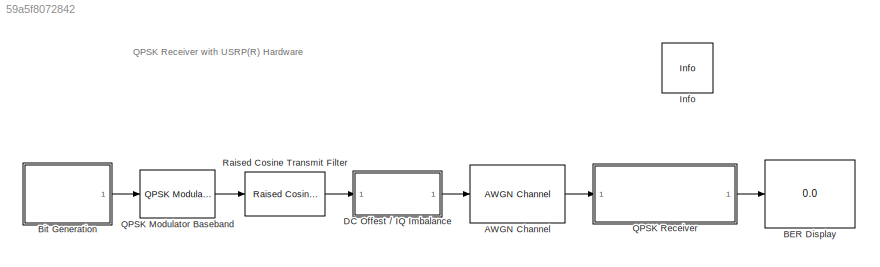
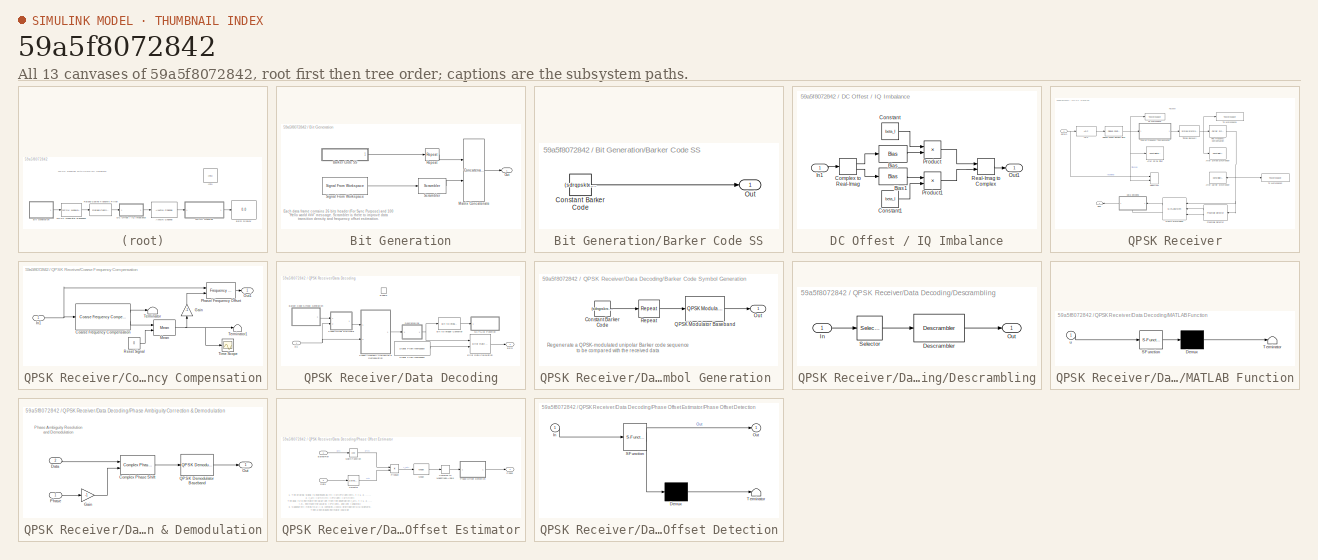
[diagram: thumbnail index - all 13 canvases of the model, root first then tree order]
MODEL slx_59a5f8072842
KIND model
CONFIG AbsTol = auto
CONFIG EnableMultiTasking = off
CONFIG FixedStep = auto
CONFIG MaxStep = auto
CONFIG MinStep = auto
CONFIG PostLoadFcn = sdruExampleSetAvailableRadio;\n
CONFIG PreLoadFcn = platform = sdruExampleFindRadio;\nsdrqpskrx = sdruqpskreceiver_init(platform, false);\nclear platform\nplatform = sdruExampleFindRadio;\nsdrqpsktx = sdruqpsktransmitter_init(platform, false);\nclear platform
CONFIG RelTol = 1e-3
CONFIG SampleTimeConstraint = Unconstrained
CONFIG SolverName = FixedStepDiscrete
CONFIG StartTime = 0.0
CONFIG StopTime = 10
BLOCK [Reference] AWGN Channel  REF=commchan3/AWGN
Channel
  Ports = [1, 1]
  SourceBlock = commchan3/AWGN\nChannel
  SourceProductBaseCode = CM
  SourceType = AWGN Channel
  UserDataPersistent = on
BLOCK [Display] BER Display
  Decimation = 1
  Ports = [1]
BLOCK [SubSystem] Bit Generation
  Ports = [0, 1]
  RequestExecContextInheritance = off
BLOCK [SubSystem] Bit Generation/Barker Code SS
  Ports = [0, 1]
  RequestExecContextInheritance = off
BLOCK [Constant] Bit Generation/Barker Code SS/Constant Barker Code
  OutDataTypeStr = double
  Value = (sdrqpsktx.BarkerCode)' > 0; % Bipolar to Unipolar
  VectorParams1D = off
BLOCK [Outport] Bit Generation/Barker Code SS/Out
  VectorParamsAs1DForOutWhenUnconnected = off
BLOCK [Concatenate] Bit Generation/Matrix Concatenate
  Mode = Multidimensional array
  Ports = [2, 1]
BLOCK [Outport] Bit Generation/Out
  VectorParamsAs1DForOutWhenUnconnected = off
BLOCK [Reference] Bit Generation/Repeat  REF=dspsigops/Repeat
  Ports = [1, 1]
  SourceBlock = dspsigops/Repeat
  SourceProductName = DSP System Toolbox
  SourceType = Repeat
  UserDataPersistent = on
BLOCK [Reference] Bit Generation/Scrambler  REF=commsequence2/Scrambler
  Ports = [1, 1]
  SourceBlock = commsequence2/Scrambler
  SourceProductName = Communications Toolbox
  SourceType = Scrambler
BLOCK [Reference] Bit Generation/Signal From Workspace  REF=dspsrcs4/Signal From
Workspace
  Ports = [0, 1]
  SourceBlock = dspsrcs4/Signal From\nWorkspace
  SourceProductName = DSP System Toolbox
  SourceType = Signal From Workspace
BLOCK [SubSystem] DC Offest // IQ Imbalance
  Ports = [1, 1]
  RequestExecContextInheritance = off
BLOCK [Bias] DC Offest // IQ Imbalance/Bias
  Bias = I_offset
  SaturateOnIntegerOverflow = off
BLOCK [Bias] DC Offest // IQ Imbalance/Bias1
  Bias = Q_offset
  SaturateOnIntegerOverflow = off
BLOCK [ComplexToRealImag] DC Offest // IQ Imbalance/Complex to Real-Imag
  Ports = [1, 2]
BLOCK [Constant] DC Offest // IQ Imbalance/Constant
  Value = beta_I
BLOCK [Constant] DC Offest // IQ Imbalance/Constant1
  Value = beta_I
BLOCK [Inport] DC Offest // IQ Imbalance/In1
BLOCK [Outport] DC Offest // IQ Imbalance/Out1
BLOCK [Product] DC Offest // IQ Imbalance/Product
  Ports = [2, 1]
BLOCK [Product] DC Offest // IQ Imbalance/Product1
  Ports = [2, 1]
BLOCK [RealImagToComplex] DC Offest // IQ Imbalance/Real-Imag to Complex
  Ports = [2, 1]
BLOCK [Reference] Info  REF=sdrublksprivate/Info
  Ports = []
  SourceBlock = sdrublksprivate/Info
  SourceProductBaseCode = USRP
  SourceType = Info
BLOCK [Reference] QPSK Modulator Baseband  REF=commdigbbndpm3/QPSK
Modulator
Baseband
  Ports = [1, 1]
  SourceBlock = commdigbbndpm3/QPSK\nModulator\nBaseband
  SourceProductName = Communications Toolbox
  SourceType = QPSK Modulator Baseband
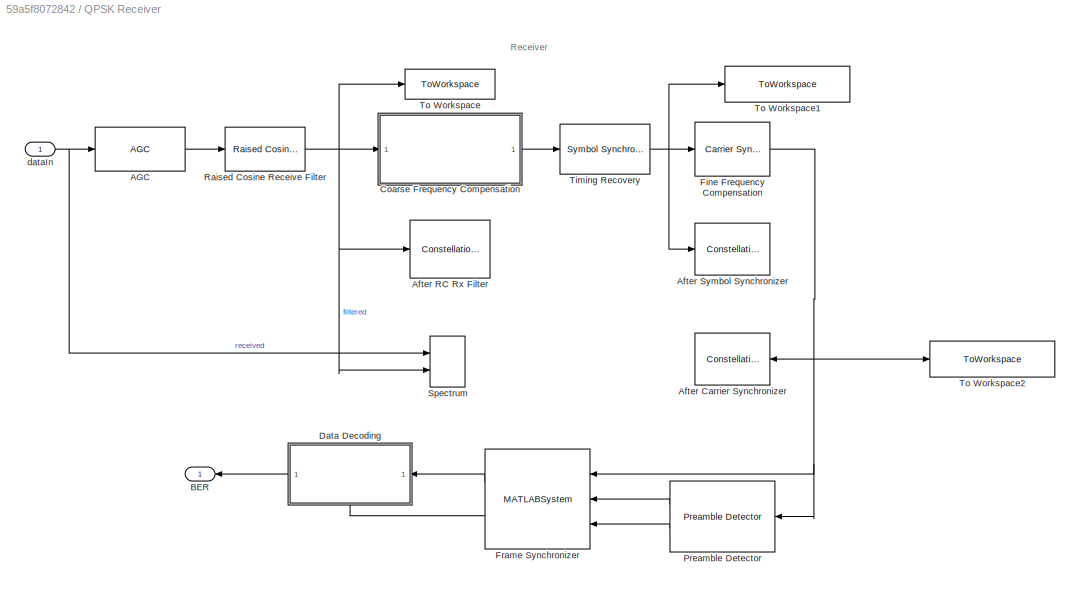
BLOCK [SubSystem] QPSK Receiver
  NameLocation = top
  Ports = [1, 1]
  RequestExecContextInheritance = off
BLOCK [Reference] QPSK Receiver/AGC  REF=commrfcorlib/AGC
  Ports = [1, 1]
  SourceBlock = commrfcorlib/AGC
  SourceProductName = Communications Toolbox
  SourceType = AGC
BLOCK [ConstellationDiagram] QPSK Receiver/After Carrier Synchronizer
  Ports = [1]
  ScopeSpecificationString = comm.scopes.ConstellationDiagramBlockCfg('CurrentConfiguration', extmgr.ConfigurationSet(extmgr.Configuration('Core','General UI',true),extmgr.Configuration('Core','Source UI',true),extmgr.Configuration('Sources','WiredSimulink',true),extmgr.Configuration('Sources','File',false),extmgr.Configuration('Sources','Workspace',false),extmgr.Configuration('Sources','Streaming',false),extmgr.Configuration...<+3166ch>
  Tag = ScatterPlot
BLOCK [ConstellationDiagram] QPSK Receiver/After RC Rx Filter
  Ports = [1]
  ScopeSpecificationString = comm.scopes.ConstellationDiagramBlockCfg('CurrentConfiguration', extmgr.ConfigurationSet(extmgr.Configuration('Core','General UI',true),extmgr.Configuration('Core','Source UI',true),extmgr.Configuration('Sources','WiredSimulink',true),extmgr.Configuration('Sources','Workspace',false),extmgr.Configuration('Sources','Streaming',false),extmgr.Configuration('Sources','Simulink',false),extmgr.Configura...<+3027ch>
  Tag = ScatterPlot
BLOCK [ConstellationDiagram] QPSK Receiver/After Symbol Synchronizer
  Ports = [1]
  ScopeSpecificationString = comm.scopes.ConstellationDiagramBlockCfg('CurrentConfiguration', extmgr.ConfigurationSet(extmgr.Configuration('Core','General UI',true),extmgr.Configuration('Core','Source UI',true),extmgr.Configuration('Sources','WiredSimulink',true),extmgr.Configuration('Sources','File',false),extmgr.Configuration('Sources','Workspace',false),extmgr.Configuration('Sources','Streaming',false),extmgr.Configuration...<+3032ch>
  Tag = ScatterPlot
BLOCK [Outport] QPSK Receiver/BER
  VectorParamsAs1DForOutWhenUnconnected = off
BLOCK [SubSystem] QPSK Receiver/Coarse Frequency Compensation
  Ports = [1, 1]
  RequestExecContextInheritance = off
BLOCK [Reference] QPSK Receiver/Coarse Frequency Compensation/Coarse Frequency Compensation  REF=commrfcorlib/Coarse Frequency
Compensator
  Ports = [1, 2]
  SourceBlock = commrfcorlib/Coarse Frequency\nCompensator
  SourceProductName = Communications Toolbox
  SourceType = Coarse Frequency Compensator
BLOCK [Gain] QPSK Receiver/Coarse Frequency Compensation/Gain
  Gain = -1
  NameLocation = right
BLOCK [Inport] QPSK Receiver/Coarse Frequency Compensation/In1
BLOCK [Reference] QPSK Receiver/Coarse Frequency Compensation/Mean  REF=dspstat3/Mean
  Ports = [2, 1]
  SourceBlock = dspstat3/Mean
  SourceProductName = DSP System Toolbox
  SourceType = Mean
  UserDataPersistent = on
BLOCK [Outport] QPSK Receiver/Coarse Frequency Compensation/Out1
  VectorParamsAs1DForOutWhenUnconnected = off
BLOCK [Reference] QPSK Receiver/Coarse Frequency Compensation/Phase// Frequency Offset  REF=commrflib2/Phase//
Frequency
Offset
  Ports = [2, 1]
  SourceBlock = commrflib2/Phase//\nFrequency\nOffset
  SourceProductName = Communications Toolbox
  SourceType = Phase/Frequency Offset
BLOCK [Constant] QPSK Receiver/Coarse Frequency Compensation/Reset Signal
  Value = 0
BLOCK [Terminator] QPSK Receiver/Coarse Frequency Compensation/Terminator
BLOCK [Terminator] QPSK Receiver/Coarse Frequency Compensation/Terminator1
BLOCK [Scope] QPSK Receiver/Coarse Frequency Compensation/Time Scope
  Commented = on
  DefaultConfigurationName = spbscopes.TimeScopeBlockCfg
  Floating = off
  NumInputPorts = 1
  Ports = [1]
  ScopeSpecificationString = spbscopes.TimeScopeBlockCfg('CurrentConfiguration', extmgr.ConfigurationSet(extmgr.Configuration('Core','General UI',true),extmgr.Configuration('Core','Source UI',true),extmgr.Configuration('Sources','WiredSimulink',true,'DataLoggingVariableName','ScopeData1'),extmgr.Configuration('Visuals','Time Domain',true),extmgr.Configuration('Tools','Plot Navigation',true),extmgr.Configuration('Tools','Measu...<+34ch>
  UserDataPersistent = on
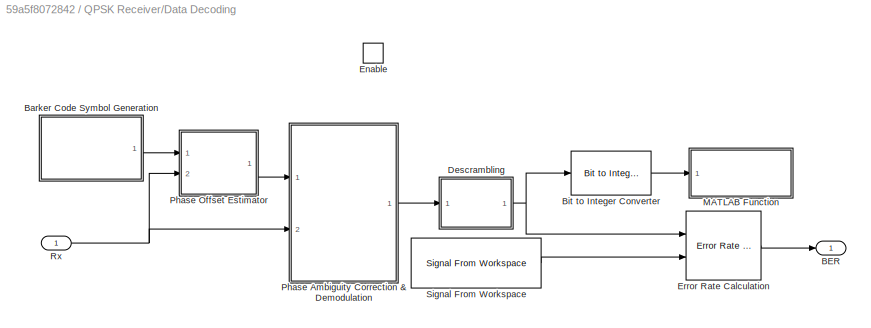
BLOCK [SubSystem] QPSK Receiver/Data Decoding
  NameLocation = top
  Ports = [1, 1, 1]
  RequestExecContextInheritance = off
BLOCK [Outport] QPSK Receiver/Data Decoding/BER
  VectorParamsAs1DForOutWhenUnconnected = off
BLOCK [SubSystem] QPSK Receiver/Data Decoding/Barker Code Symbol Generation 
  Ports = [0, 1]
  RequestExecContextInheritance = off
BLOCK [Constant] QPSK Receiver/Data Decoding/Barker Code Symbol Generation /Constant Barker Code
  OutDataTypeStr = double
  Value = (sdrqpskrx.BarkerCode)' > 0
  VectorParams1D = off
BLOCK [Outport] QPSK Receiver/Data Decoding/Barker Code Symbol Generation /Out
  VectorParamsAs1DForOutWhenUnconnected = off
BLOCK [Reference] QPSK Receiver/Data Decoding/Barker Code Symbol Generation /QPSK Modulator Baseband  REF=commdigbbndpm3/QPSK
Modulator
Baseband
  Ports = [1, 1]
  SourceBlock = commdigbbndpm3/QPSK\nModulator\nBaseband
  SourceProductName = Communications Toolbox
  SourceType = QPSK Modulator Baseband
BLOCK [Reference] QPSK Receiver/Data Decoding/Barker Code Symbol Generation /Repeat  REF=dspsigops/Repeat
  Ports = [1, 1]
  SourceBlock = dspsigops/Repeat
  SourceProductName = DSP System Toolbox
  SourceType = Repeat
  UserDataPersistent = on
BLOCK [Reference] QPSK Receiver/Data Decoding/Bit to Integer Converter  REF=commutil2/Bit to Integer
Converter
  Ports = [1, 1]
  SourceBlock = commutil2/Bit to Integer\nConverter
  SourceProductName = Communications Toolbox
  SourceType = Bit to Integer Converter
BLOCK [SubSystem] QPSK Receiver/Data Decoding/Descrambling
  Ports = [1, 1]
  RequestExecContextInheritance = off
BLOCK [Reference] QPSK Receiver/Data Decoding/Descrambling/Descrambler  REF=commsequence2/Descrambler
  Ports = [1, 1]
  SourceBlock = commsequence2/Descrambler
  SourceProductName = Communications Toolbox
  SourceType = Descrambler
BLOCK [Inport] QPSK Receiver/Data Decoding/Descrambling/In
BLOCK [Outport] QPSK Receiver/Data Decoding/Descrambling/Out
  VectorParamsAs1DForOutWhenUnconnected = off
BLOCK [Selector] QPSK Receiver/Data Decoding/Descrambling/Selector
  IndexOptions = Index vector (dialog)
  Indices = [sdrqpskrx.HeaderLength+(1 : sdrqpskrx.PayloadLength)]
  OutputSizes = 1
  Ports = [1, 1]
BLOCK [EnablePort] QPSK Receiver/Data Decoding/Enable
  Ports = []
BLOCK [Reference] QPSK Receiver/Data Decoding/Error Rate Calculation  REF=commsink2/Error Rate
Calculation
  Ports = [2, 1]
  SourceBlock = commsink2/Error Rate\nCalculation
  SourceProductName = Communications Toolbox
  SourceType = Error Rate Calculation
BLOCK [SubSystem] QPSK Receiver/Data Decoding/MATLAB Function
  ErrorFcn = Stateflow.Translate.translate
  PermitHierarchicalResolution = ExplicitOnly
  Ports = [1]
  RequestExecContextInheritance = off
  SFBlockType = MATLAB Function
  TreatAsAtomicUnit = on
BLOCK [Demux] QPSK Receiver/Data Decoding/MATLAB Function/ Demux 
  Outputs = 1
  Ports = [1, 1]
BLOCK [S-Function] QPSK Receiver/Data Decoding/MATLAB Function/ SFunction 
  EnableBusSupport = on
  FunctionName = sf_sfun
  PortCounts = [1 1]
  Ports = [1, 1]
  SFcnIsStateOwnerBlock = off
  SFunctionDeploymentMode = off
  Tag = Stateflow S-Function 1
BLOCK [Terminator] QPSK Receiver/Data Decoding/MATLAB Function/ Terminator 
BLOCK [Inport] QPSK Receiver/Data Decoding/MATLAB Function/u
BLOCK [SubSystem] QPSK Receiver/Data Decoding/Phase Ambiguity Correction & Demodulation
  Ports = [2, 1]
  RequestExecContextInheritance = off
BLOCK [Reference] QPSK Receiver/Data Decoding/Phase Ambiguity Correction & Demodulation/Complex Phase Shift  REF=commutil2/Complex Phase
Shift
  Ports = [2, 1]
  SourceBlock = commutil2/Complex Phase\nShift
  SourceProductName = Communications Toolbox
  SourceType = Complex Phase Shift
BLOCK [Inport] QPSK Receiver/Data Decoding/Phase Ambiguity Correction & Demodulation/Data
  Port = 2
BLOCK [Gain] QPSK Receiver/Data Decoding/Phase Ambiguity Correction & Demodulation/Gain
  Gain = -1
  OutDataTypeStr = Inherit: Same as input
BLOCK [Outport] QPSK Receiver/Data Decoding/Phase Ambiguity Correction & Demodulation/Out
  VectorParamsAs1DForOutWhenUnconnected = off
BLOCK [Inport] QPSK Receiver/Data Decoding/Phase Ambiguity Correction & Demodulation/Phase
BLOCK [Reference] QPSK Receiver/Data Decoding/Phase Ambiguity Correction & Demodulation/QPSK Demodulator Baseband  REF=commdigbbndpm3/QPSK
Demodulator
Baseband
  Ports = [1, 1]
  SourceBlock = commdigbbndpm3/QPSK\nDemodulator\nBaseband
  SourceProductName = Communications Toolbox
  SourceType = QPSK Demodulator Baseband
BLOCK [SubSystem] QPSK Receiver/Data Decoding/Phase Offset Estimator
  Ports = [2, 1]
  RequestExecContextInheritance = off
BLOCK [Inport] QPSK Receiver/Data Decoding/Phase Offset Estimator/BarkerRef
BLOCK [ComplexToMagnitudeAngle] QPSK Receiver/Data Decoding/Phase Offset Estimator/Complex to Magnitude-Angle
  Output = Angle
  Ports = [1, 1]
BLOCK [Inport] QPSK Receiver/Data Decoding/Phase Offset Estimator/Data
  Port = 2
BLOCK [Math] QPSK Receiver/Data Decoding/Phase Offset Estimator/Math Function
  Operator = conj
  Ports = [1, 1]
  SignedPower = on
BLOCK [Reference] QPSK Receiver/Data Decoding/Phase Offset Estimator/Mean  REF=dspstat3/Mean
  Ports = [1, 1]
  SourceBlock = dspstat3/Mean
  SourceProductName = DSP System Toolbox
  SourceType = Mean
  UserDataPersistent = on
BLOCK [Outport] QPSK Receiver/Data Decoding/Phase Offset Estimator/Phase
  VectorParamsAs1DForOutWhenUnconnected = off
BLOCK [SubSystem] QPSK Receiver/Data Decoding/Phase Offset Estimator/Phase Offset Detection
  ErrorFcn = Stateflow.Translate.translate
  PermitHierarchicalResolution = ExplicitOnly
  Ports = [1, 1]
  RequestExecContextInheritance = off
  SFBlockType = MATLAB Function
  TreatAsAtomicUnit = on
BLOCK [Demux] QPSK Receiver/Data Decoding/Phase Offset Estimator/Phase Offset Detection/ Demux 
  Outputs = 1
  Ports = [1, 1]
BLOCK [S-Function] QPSK Receiver/Data Decoding/Phase Offset Estimator/Phase Offset Detection/ SFunction 
  EnableBusSupport = on
  FunctionName = sf_sfun
  PortCounts = [1 2]
  Ports = [1, 2]
  SFcnIsStateOwnerBlock = off
  SFunctionDeploymentMode = off
  Tag = Stateflow S-Function 2
BLOCK [Terminator] QPSK Receiver/Data Decoding/Phase Offset Estimator/Phase Offset Detection/ Terminator 
BLOCK [Inport] QPSK Receiver/Data Decoding/Phase Offset Estimator/Phase Offset Detection/In
BLOCK [Outport] QPSK Receiver/Data Decoding/Phase Offset Estimator/Phase Offset Detection/Out
  VectorParamsAs1DForOutWhenUnconnected = off
BLOCK [Product] QPSK Receiver/Data Decoding/Phase Offset Estimator/Product
  Ports = [2, 1]
  RndMeth = Zero
BLOCK [Selector] QPSK Receiver/Data Decoding/Phase Offset Estimator/Selector
  IndexOptions = Index vector (dialog)
  Indices = [1:sdrqpskrx.BarkerLength]
  OutputSizes = 1
  Ports = [1, 1]
BLOCK [Inport] QPSK Receiver/Data Decoding/Rx
BLOCK [Reference] QPSK Receiver/Data Decoding/Signal From Workspace  REF=dspsrcs4/Signal From
Workspace
  Ports = [0, 1]
  SourceBlock = dspsrcs4/Signal From\nWorkspace
  SourceProductName = DSP System Toolbox
  SourceType = Signal From Workspace
BLOCK [Reference] QPSK Receiver/Fine Frequency Compensation  REF=commsync2/Carrier Synchronizer
  Ports = [1, 1]
  SourceBlock = commsync2/Carrier Synchronizer
  SourceProductName = Communications Toolbox
  SourceType = Carrier Synchronizer
BLOCK [MATLABSystem] QPSK Receiver/Frame Synchronizer
  Input = Symbol
  MaskDisplay = disp(['Frame' char(10) 'Synchronizer']);\nport_label('input',1,'u');\nport_label('input',2,'idx');\nport_label('input',3,'dtMt');\nport_label('output',1,'Frame');\nport_label('output',2,'Valid');
  MaskType = comm.internal.examples.FrameSynchronizer
  OutputFrameLength = sdrqpskrx.FrameSize
  Ports = [3, 2]
  PreambleLength = sdrqpskrx.BarkerLength
  SimulateUsing = Code generation
  System = comm.internal.examples.FrameSynchronizer
BLOCK [Reference] QPSK Receiver/Preamble Detector  REF=commsync2/Preamble Detector
  Ports = [1, 2]
  SourceBlock = commsync2/Preamble Detector
  SourceProductName = Communications Toolbox
  SourceType = Preamble Detector
BLOCK [Reference] QPSK Receiver/Raised Cosine Receive Filter  REF=commfilt2/Raised Cosine
Receive Filter
  Ports = [1, 1]
  SourceBlock = commfilt2/Raised Cosine\nReceive Filter
  SourceProductName = Communications Toolbox
  SourceType = Raised Cosine Receive Filter
  UserDataPersistent = on
BLOCK [SpectrumAnalyzer] QPSK Receiver/Spectrum
  Commented = on
  NumInputPorts = 2
  Ports = [2]
  ScopeSpecificationString = spbscopes.SpectrumAnalyzerBlockCfg('CurrentConfiguration', extmgr.ConfigurationSet(extmgr.Configuration('Core','General UI',true,'DisplayFullSourceName',true,'ShowPlaybackToolbar',false,'FigureColor',[0.701960784313725 0.701960784313725 0.701960784313725]),extmgr.Configuration('Core','Source UI',true),extmgr.Configuration('Sources','WiredSimulink',true),extmgr.Configuration('Sources','Streaming',f...<+3722ch>
BLOCK [Reference] QPSK Receiver/Timing Recovery  REF=commsync2/Symbol Synchronizer
  Ports = [1, 1]
  SourceBlock = commsync2/Symbol Synchronizer
  SourceProductName = Communications Toolbox
  SourceType = Symbol Synchronizer
BLOCK [ToWorkspace] QPSK Receiver/To Workspace
  FixptAsFi = on
  MaxDataPoints = inf
  Ports = [1]
  SampleTime = -1
  Save2DSignal = 2-D array (concatenate along first dimension)
  SaveFormat = Structure
  VariableName = Data_AfterRCRxFilter
BLOCK [ToWorkspace] QPSK Receiver/To Workspace1
  Commented = on
  FixptAsFi = on
  MaxDataPoints = inf
  Ports = [1]
  SampleTime = -1
  Save2DSignal = 2-D array (concatenate along first dimension)
  SaveFormat = Structure
  VariableName = Data_AfterSymbolSynchronizer
BLOCK [ToWorkspace] QPSK Receiver/To Workspace2
  Commented = on
  FixptAsFi = on
  MaxDataPoints = inf
  Ports = [1]
  SampleTime = -1
  Save2DSignal = 2-D array (concatenate along first dimension)
  SaveFormat = Structure
  VariableName = Data_AfterCarrierSynchronizer
BLOCK [Inport] QPSK Receiver/dataIn
BLOCK [Reference] Raised Cosine Transmit Filter  REF=commfilt2/Raised Cosine
Transmit Filter
  Ports = [1, 1]
  SourceBlock = commfilt2/Raised Cosine\nTransmit Filter
  SourceProductName = Communications Toolbox
  SourceType = Raised Cosine Transmit Filter
  UserDataPersistent = on
ANNOTATION (root): QPSK Receiver with USRP(R) Hardware
ANNOTATION Bit Generation: Each data frame contains 26 bits header (For Sync Purpose) and 100 "Hello world ###" message. Scrambler is there to improve data transition density and frequency offset estimation.
ANNOTATION QPSK Receiver: Receiver
ANNOTATION QPSK Receiver/Data Decoding/Barker Code Symbol Generation : Regenerate a QPSK-modulated unipolar Barker code sequence to be compared with the received data
ANNOTATION QPSK Receiver/Data Decoding/Phase Ambiguity Correction & Demodulation: Phase Ambiguity Resolution and Demodulation
ANNOTATION QPSK Receiver/Data Decoding/Phase Offset Estimator: 1. The original signal is expressed as y(t) = x(t)e^{j\phi}+n(t), t = 1, 2, ..., N 2. y_1(t) = x{*}(t)y(t) = e^{j\phi} + x{*}(t)n(t) The goal is to estimate the value \phi from the observation y_1(t), t = 1, 2, ...N i.e., estimate the value B = e^{j\phi}, and \phi = angle(B) 3. Suppose n(t) yields to a i.i.d. complex AWGN distribution N(0,\sigma^2). Then a non-biased estimator could be B_{est} = 1...<+91ch>
LINE AWGN Channel:1 -> QPSK Receiver:1
LINE Bit Generation/Barker Code SS/Constant Barker Code:1 -> Bit Generation/Barker Code SS/Out:1
LINE Bit Generation/Barker Code SS:1 -> Bit Generation/Repeat:1
LINE Bit Generation/Matrix Concatenate:1 -> Bit Generation/Out:1
LINE Bit Generation/Repeat:1 -> Bit Generation/Matrix Concatenate:1
LINE Bit Generation/Scrambler:1 -> Bit Generation/Matrix Concatenate:2
LINE Bit Generation/Signal From Workspace:1 -> Bit Generation/Scrambler:1
LINE Bit Generation:1 -> QPSK Modulator Baseband:1
LINE DC Offest // IQ Imbalance/Bias1:1 -> DC Offest // IQ Imbalance/Product1:1
LINE DC Offest // IQ Imbalance/Bias:1 -> DC Offest // IQ Imbalance/Product:2
LINE DC Offest // IQ Imbalance/Complex to Real-Imag:1 -> DC Offest // IQ Imbalance/Bias:1
LINE DC Offest // IQ Imbalance/Complex to Real-Imag:2 -> DC Offest // IQ Imbalance/Bias1:1
LINE DC Offest // IQ Imbalance/Constant1:1 -> DC Offest // IQ Imbalance/Product1:2
LINE DC Offest // IQ Imbalance/Constant:1 -> DC Offest // IQ Imbalance/Product:1
LINE DC Offest // IQ Imbalance/In1:1 -> DC Offest // IQ Imbalance/Complex to Real-Imag:1
LINE DC Offest // IQ Imbalance/Product1:1 -> DC Offest // IQ Imbalance/Real-Imag to Complex:2
LINE DC Offest // IQ Imbalance/Product:1 -> DC Offest // IQ Imbalance/Real-Imag to Complex:1
LINE DC Offest // IQ Imbalance/Real-Imag to Complex:1 -> DC Offest // IQ Imbalance/Out1:1
LINE DC Offest // IQ Imbalance:1 -> AWGN Channel:1
LINE QPSK Modulator Baseband:1 -> Raised Cosine Transmit Filter:1
LINE QPSK Receiver/AGC:1 -> QPSK Receiver/Raised Cosine Receive Filter:1
LINE QPSK Receiver/Coarse Frequency Compensation/Coarse Frequency Compensation:1 -> QPSK Receiver/Coarse Frequency Compensation/Terminator:1
LINE QPSK Receiver/Coarse Frequency Compensation/Coarse Frequency Compensation:2 -> QPSK Receiver/Coarse Frequency Compensation/Mean:1
LINE QPSK Receiver/Coarse Frequency Compensation/Gain:1 -> QPSK Receiver/Coarse Frequency Compensation/Phase// Frequency Offset:2
NET QPSK Receiver/Coarse Frequency Compensation/In1:1 -> QPSK Receiver/Coarse Frequency Compensation/Coarse Frequency Compensation:1, QPSK Receiver/Coarse Frequency Compensation/Phase// Frequency Offset:1
NET QPSK Receiver/Coarse Frequency Compensation/Mean:1 -> QPSK Receiver/Coarse Frequency Compensation/Gain:1, QPSK Receiver/Coarse Frequency Compensation/Terminator1:1, QPSK Receiver/Coarse Frequency Compensation/Time Scope:1
LINE QPSK Receiver/Coarse Frequency Compensation/Phase// Frequency Offset:1 -> QPSK Receiver/Coarse Frequency Compensation/Out1:1
LINE QPSK Receiver/Coarse Frequency Compensation/Reset Signal:1 -> QPSK Receiver/Coarse Frequency Compensation/Mean:2
LINE QPSK Receiver/Coarse Frequency Compensation:1 -> QPSK Receiver/Timing Recovery:1
LINE QPSK Receiver/Data Decoding/Barker Code Symbol Generation /Constant Barker Code:1 -> QPSK Receiver/Data Decoding/Barker Code Symbol Generation /Repeat:1
LINE QPSK Receiver/Data Decoding/Barker Code Symbol Generation /QPSK Modulator Baseband:1 -> QPSK Receiver/Data Decoding/Barker Code Symbol Generation /Out:1
LINE QPSK Receiver/Data Decoding/Barker Code Symbol Generation /Repeat:1 -> QPSK Receiver/Data Decoding/Barker Code Symbol Generation /QPSK Modulator Baseband:1
LINE QPSK Receiver/Data Decoding/Barker Code Symbol Generation :1 -> QPSK Receiver/Data Decoding/Phase Offset Estimator:1
LINE QPSK Receiver/Data Decoding/Bit to Integer Converter:1 -> QPSK Receiver/Data Decoding/MATLAB Function:1
LINE QPSK Receiver/Data Decoding/Descrambling/Descrambler:1 -> QPSK Receiver/Data Decoding/Descrambling/Out:1
LINE QPSK Receiver/Data Decoding/Descrambling/In:1 -> QPSK Receiver/Data Decoding/Descrambling/Selector:1
LINE QPSK Receiver/Data Decoding/Descrambling/Selector:1 -> QPSK Receiver/Data Decoding/Descrambling/Descrambler:1
NET QPSK Receiver/Data Decoding/Descrambling:1 -> QPSK Receiver/Data Decoding/Bit to Integer Converter:1, QPSK Receiver/Data Decoding/Error Rate Calculation:1
LINE QPSK Receiver/Data Decoding/Error Rate Calculation:1 -> QPSK Receiver/Data Decoding/BER:1
LINE QPSK Receiver/Data Decoding/Phase Ambiguity Correction & Demodulation/Complex Phase Shift:1 -> QPSK Receiver/Data Decoding/Phase Ambiguity Correction & Demodulation/QPSK Demodulator Baseband:1
LINE QPSK Receiver/Data Decoding/Phase Ambiguity Correction & Demodulation/Data:1 -> QPSK Receiver/Data Decoding/Phase Ambiguity Correction & Demodulation/Complex Phase Shift:1
LINE QPSK Receiver/Data Decoding/Phase Ambiguity Correction & Demodulation/Gain:1 -> QPSK Receiver/Data Decoding/Phase Ambiguity Correction & Demodulation/Complex Phase Shift:2
LINE QPSK Receiver/Data Decoding/Phase Ambiguity Correction & Demodulation/Phase:1 -> QPSK Receiver/Data Decoding/Phase Ambiguity Correction & Demodulation/Gain:1
LINE QPSK Receiver/Data Decoding/Phase Ambiguity Correction & Demodulation/QPSK Demodulator Baseband:1 -> QPSK Receiver/Data Decoding/Phase Ambiguity Correction & Demodulation/Out:1
LINE QPSK Receiver/Data Decoding/Phase Ambiguity Correction & Demodulation:1 -> QPSK Receiver/Data Decoding/Descrambling:1
LINE QPSK Receiver/Data Decoding/Phase Offset Estimator/BarkerRef:1 -> QPSK Receiver/Data Decoding/Phase Offset Estimator/Math Function:1
LINE QPSK Receiver/Data Decoding/Phase Offset Estimator/Complex to Magnitude-Angle:1 -> QPSK Receiver/Data Decoding/Phase Offset Estimator/Phase Offset Detection:1
LINE QPSK Receiver/Data Decoding/Phase Offset Estimator/Data:1 -> QPSK Receiver/Data Decoding/Phase Offset Estimator/Selector:1
LINE QPSK Receiver/Data Decoding/Phase Offset Estimator/Math Function:1 -> QPSK Receiver/Data Decoding/Phase Offset Estimator/Product:1
LINE QPSK Receiver/Data Decoding/Phase Offset Estimator/Mean:1 -> QPSK Receiver/Data Decoding/Phase Offset Estimator/Complex to Magnitude-Angle:1
LINE QPSK Receiver/Data Decoding/Phase Offset Estimator/Phase Offset Detection:1 -> QPSK Receiver/Data Decoding/Phase Offset Estimator/Phase:1
LINE QPSK Receiver/Data Decoding/Phase Offset Estimator/Product:1 -> QPSK Receiver/Data Decoding/Phase Offset Estimator/Mean:1
LINE QPSK Receiver/Data Decoding/Phase Offset Estimator/Selector:1 -> QPSK Receiver/Data Decoding/Phase Offset Estimator/Product:2
LINE QPSK Receiver/Data Decoding/Phase Offset Estimator:1 -> QPSK Receiver/Data Decoding/Phase Ambiguity Correction & Demodulation:1
NET QPSK Receiver/Data Decoding/Rx:1 -> QPSK Receiver/Data Decoding/Phase Ambiguity Correction & Demodulation:2, QPSK Receiver/Data Decoding/Phase Offset Estimator:2
LINE QPSK Receiver/Data Decoding/Signal From Workspace:1 -> QPSK Receiver/Data Decoding/Error Rate Calculation:2
LINE QPSK Receiver/Data Decoding:1 -> QPSK Receiver/BER:1
NET QPSK Receiver/Fine Frequency Compensation:1 -> QPSK Receiver/After Carrier Synchronizer:1, QPSK Receiver/Frame Synchronizer:1, QPSK Receiver/Preamble Detector:1, QPSK Receiver/To Workspace2:1
LINE QPSK Receiver/Frame Synchronizer:1 -> QPSK Receiver/Data Decoding:1
LINE QPSK Receiver/Frame Synchronizer:2 -> QPSK Receiver/Data Decoding:enable
LINE QPSK Receiver/Preamble Detector:1 -> QPSK Receiver/Frame Synchronizer:2
LINE QPSK Receiver/Preamble Detector:2 -> QPSK Receiver/Frame Synchronizer:3
NET QPSK Receiver/Raised Cosine Receive Filter:1 -> QPSK Receiver/After RC Rx Filter:1, QPSK Receiver/Coarse Frequency Compensation:1, QPSK Receiver/Spectrum:2, QPSK Receiver/To Workspace:1
NET QPSK Receiver/Timing Recovery:1 -> QPSK Receiver/After Symbol Synchronizer:1, QPSK Receiver/Fine Frequency Compensation:1, QPSK Receiver/To Workspace1:1
NET QPSK Receiver/dataIn:1 -> QPSK Receiver/AGC:1, QPSK Receiver/Spectrum:1
LINE QPSK Receiver:1 -> BER Display:1
LINE Raised Cosine Transmit Filter:1 -> DC Offest // IQ Imbalance:1
note: NET lines group one-source signal fan-out (src -> all destinations, sorted); 1:1 wires keep LINE
CHART QPSK Receiver/Data Decoding/Phase Offset
Estimator/Phase Offset Detection states=1 transitions=1
  STATE_LABEL 'eML_blk_kernel()'
  STATE_LABEL 'SCRIPT:\nfunction Out = phasedecision(In)\n% Map the estimated phase to one of -pi, -pi/2, 0, pi/2,  \n%#codegen\nOut = round(In.*2./pi)./2.*pi;\n% The above processing is equivalent to the following processing using\n% if/else statements\n%\n% if In<pi/4 && In>-pi/4\n%     Out = 0;\n% elseif In>=pi/4 && In<pi*3/4\n%     Out = pi/2;\n% elseif In>=pi*3/4 || In<=-pi*3/4\n%     Out = -pi;\n% else\n%     Out = -pi/2...<+10ch>'
CHART QPSK Receiver/Data Decoding/MATLAB Function states=1 transitions=1
  STATE_LABEL 'eML_blk_kernel()'
  STATE_LABEL "SCRIPT:\nfunction IntegerToASCII(u)\nfprintf('%s', char(u'));\nend\n\n"
CHART  states=0 transitions=0
CHART  states=0 transitions=0
